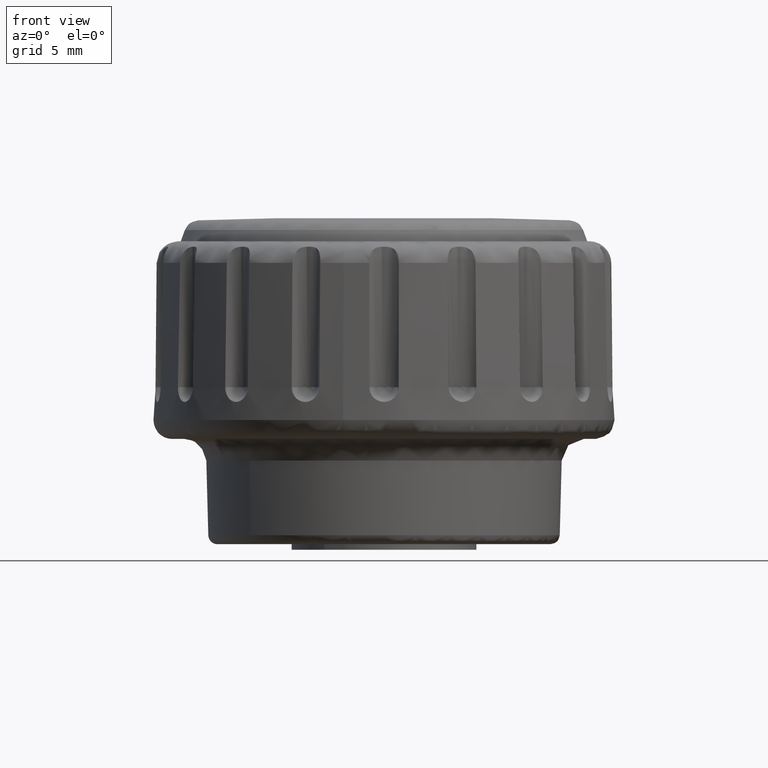
[diagram: clean part render]
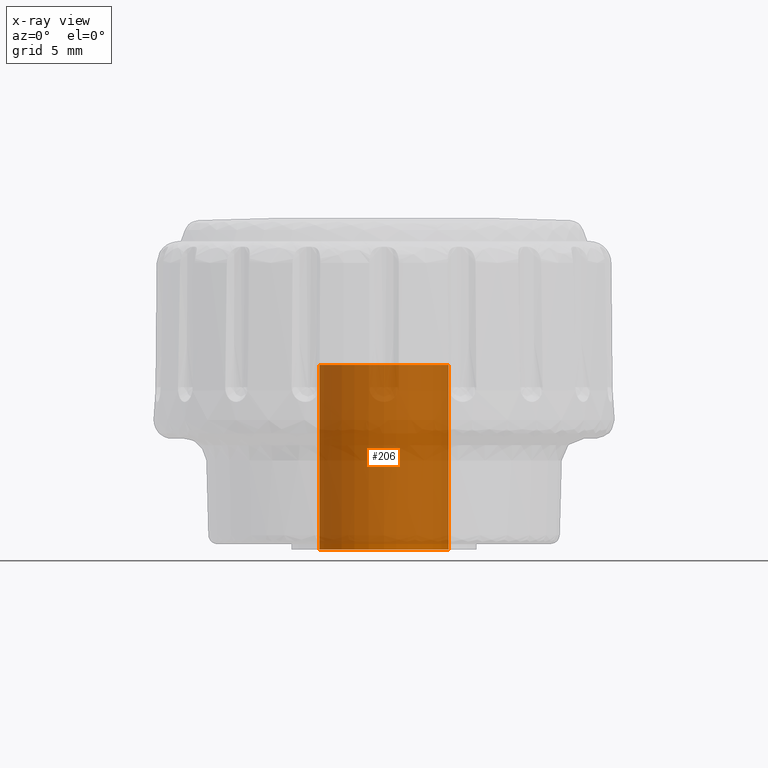
[diagram: x-ray — body ghosted, one internal face saturated and labeled with its STEP entity id]
A machine part, front view, then the same camera in x-ray: the body is ghosted and one INTERNAL B-rep face — a face not visible from any outside direction — is saturated and labeled: STEP entity #206.
In plain terms, the highlighted face is a freeform B-spline surface patch.
Its self-contained STEP definition (entity closure, byte-faithful):
#44=CARTESIAN_POINT('',(2.260097134337089,2.672444750291627,10.250000000000002));
#45=CARTESIAN_POINT('',(2.336581354930514,2.607761741310302,10.249999999999995));
#46=CARTESIAN_POINT('',(2.409241014928138,2.538810298543006,10.250000000000000));
#47=CARTESIAN_POINT('',(4.948051313471143,0.129569283614868,10.250000000000000));
#48=CARTESIAN_POINT('',(2.538810298543006,-2.409241014928138,10.250000000000000));
#49=CARTESIAN_POINT('',(0.129569283614868,-4.948051313471143,10.250000000000000));
#50=CARTESIAN_POINT('',(-2.409241014928138,-2.538810298543006,10.250000000000000));
#51=CARTESIAN_POINT('',(-4.948051313471143,-0.129569283614868,10.250000000000000));
#52=CARTESIAN_POINT('',(-2.538810298543006,2.409241014928138,10.250000000000000));
#53=CARTESIAN_POINT('',(2.260097134337089,2.672444750291627,-0.256250000000001));
#54=CARTESIAN_POINT('',(2.336581354930514,2.607761741310302,-0.256250000000001));
#55=CARTESIAN_POINT('',(2.409241014928138,2.538810298543006,-0.256250000000001));
#56=CARTESIAN_POINT('',(4.948051313471143,0.129569283614868,-0.256250000000001));
#57=CARTESIAN_POINT('',(2.538810298543006,-2.409241014928138,-0.256250000000001));
#58=CARTESIAN_POINT('',(0.129569283614868,-4.948051313471143,-0.256250000000001));
#59=CARTESIAN_POINT('',(-2.409241014928138,-2.538810298543006,-0.256250000000001));
#60=CARTESIAN_POINT('',(-4.948051313471143,-0.129569283614868,-0.256250000000001));
#61=CARTESIAN_POINT('',(-2.538810298543006,2.409241014928138,-0.256250000000001));
#69=(BOUNDED_SURFACE()B_SPLINE_SURFACE(2,1,((#44,#53),(#45,#54),(#46,#55),(#47,#56),(#48,#57),(#49,#58),(#50,#59),(#51,#60),(#52,#61)),.UNSPECIFIED.,.F.,.F.,.U.)B_SPLINE_SURFACE_WITH_KNOTS((3,2,2,2,3),(2,2),(0.0,0.231959594928934,6.030949468152262,11.829939341375590,17.628929214598919),(0.0,10.506250000000000),.UNSPECIFIED.)GEOMETRIC_REPRESENTATION_ITEM()RATIONAL_B_SPLINE_SURFACE(((0.977505800795127,0.977505800795127),(0.988284271247462,0.988284271247462),(1.0,1.0),(0.707106781186548,0.707106781186548),(1.0,1.0),(0.707106781186548,0.707106781186548),(1.0,1.0),(0.707106781186548,0.707106781186548),(1.0,1.0)))REPRESENTATION_ITEM('')SURFACE());
#70=CARTESIAN_POINT('',(2.260097181310437,2.672444829131222,-1.049595E-013));
#71=VERTEX_POINT('',#70);
#72=CARTESIAN_POINT('',(3.500000000000000,0.0,0.0));
#73=VERTEX_POINT('',#72);
#74=CARTESIAN_POINT('',(2.260097181310437,2.672444829131222,-1.049595E-013));
#75=CARTESIAN_POINT('',(2.435461646276820,2.524174303154975,-9.913618E-014));
#76=CARTESIAN_POINT('',(2.767929700249604,2.181522920079733,-8.567865E-014));
#77=CARTESIAN_POINT('',(3.118503714661130,1.630686945309838,-6.404474E-014));
#78=CARTESIAN_POINT('',(3.325199964497861,1.123243200429217,-4.411504E-014));
#79=CARTESIAN_POINT('',(3.462761197222851,0.601813183215015,-2.363603E-014));
#80=CARTESIAN_POINT('',(3.500035629256612,0.237566590132576,-9.330356E-015));
#81=CARTESIAN_POINT('',(3.500000000000000,0.0,0.0));
#82=B_SPLINE_CURVE_WITH_KNOTS('',3,(#74,#75,#76,#77,#78,#79,#80,#81),.UNSPECIFIED.,.F.,.U.,(4,1,1,1,1,4),(6.551824E-009,0.688933346026576,1.425385066113232,1.948018397683283,2.328121589525020,3.040811571146345),.UNSPECIFIED.);
#83=EDGE_CURVE('',#71,#73,#82,.T.);
#84=ORIENTED_EDGE('',*,*,#83,.F.);
#85=CARTESIAN_POINT('',(2.260097181455401,2.672444829008625,10.0));
#86=VERTEX_POINT('',#85);
#87=CARTESIAN_POINT('',(2.260097181455401,2.672444829008625,10.0));
#88=CARTESIAN_POINT('',(2.260097181310437,2.672444829131222,-1.049595E-013));
#89=QUASI_UNIFORM_CURVE('',1,(#87,#88),.UNSPECIFIED.,.F.,.U.);
#90=EDGE_CURVE('',#86,#71,#89,.T.);
#91=ORIENTED_EDGE('',*,*,#90,.F.);
#92=CARTESIAN_POINT('',(3.500000000000000,0.0,10.0));
#93=VERTEX_POINT('',#92);
#94=CARTESIAN_POINT('',(2.260097181455401,2.672444829008625,10.0));
#95=CARTESIAN_POINT('',(2.435464596163618,2.524175618246510,9.999999999999989));
#96=CARTESIAN_POINT('',(2.740209780458509,2.210070545746487,10.000000000000030));
#97=CARTESIAN_POINT('',(3.077576943263724,1.699309776542211,9.999999999999982));
#98=CARTESIAN_POINT('',(3.288417435770828,1.228179671610228,9.999999999999995));
#99=CARTESIAN_POINT('',(3.453156844249280,0.673073317960273,10.000000000000030));
#100=CARTESIAN_POINT('',(3.500060612961105,0.269244711740621,9.999999999999984));
#101=CARTESIAN_POINT('',(3.500000000000000,0.0,10.0));
#102=B_SPLINE_CURVE_WITH_KNOTS('',3,(#94,#95,#96,#97,#98,#99,#100,#101),.UNSPECIFIED.,.F.,.U.,(4,1,1,1,1,4),(6.551791E-009,0.688933345983638,1.306600283690002,1.829234546935997,2.233095770331587,3.040811570956489),.UNSPECIFIED.);
#103=EDGE_CURVE('',#86,#93,#102,.T.);
#104=ORIENTED_EDGE('',*,*,#103,.T.);
#105=CARTESIAN_POINT('',(-0.000000367221506,-3.499999999999981,10.0));
#106=VERTEX_POINT('',#105);
#107=CARTESIAN_POINT('',(3.500000000000000,0.0,10.0));
#108=CARTESIAN_POINT('',(3.500084602042959,-0.286352064712640,10.000000000000030));
#109=CARTESIAN_POINT('',(3.447857891127148,-0.708664916885998,9.999999999999945));
#110=CARTESIAN_POINT('',(3.261271205793181,-1.303969271666766,10.000000000000069));
#111=CARTESIAN_POINT('',(3.024789093007215,-1.796169622313532,10.0));
#112=CARTESIAN_POINT('',(2.668445036375147,-2.292364651954194,9.999999999999957));
#113=CARTESIAN_POINT('',(2.195341538889926,-2.754018671406120,9.999999999999959));
#114=CARTESIAN_POINT('',(1.617135478594474,-3.132738360862211,10.000000000000229));
#115=CARTESIAN_POINT('',(0.866136820572618,-3.425066875084515,9.999999999999847));
#116=CARTESIAN_POINT('',(0.314986795850150,-3.500101339709237,10.000000000000020));
#117=CARTESIAN_POINT('',(-0.000000367221506,-3.499999999999981,10.0));
#118=B_SPLINE_CURVE_WITH_KNOTS('',3,(#107,#108,#109,#110,#111,#112,#113,#114,#115,#116,#117),.UNSPECIFIED.,.F.,.U.,(4,1,1,1,1,1,1,1,4),(0.000000018149904,0.859026494235756,1.267069941351555,1.868391950878390,2.491196034947915,3.092503268743749,3.844162124232367,4.552863951940600,5.497795975187709),.UNSPECIFIED.);
#119=EDGE_CURVE('',#93,#106,#118,.T.);
#120=ORIENTED_EDGE('',*,*,#119,.T.);
#121=CARTESIAN_POINT('',(-3.500000000000000,0.0,10.0));
#122=VERTEX_POINT('',#121);
#123=CARTESIAN_POINT('',(-0.000000367221506,-3.499999999999981,10.0));
#124=CARTESIAN_POINT('',(-0.286352371549249,-3.500084663346334,10.000000000000020));
#125=CARTESIAN_POINT('',(-0.708665389706617,-3.447857883750772,9.999999999999989));
#126=CARTESIAN_POINT('',(-1.303968742882337,-3.261270976295622,10.000000000000020));
#127=CARTESIAN_POINT('',(-1.822081633765636,-3.012349799674171,9.999999999999993));
#128=CARTESIAN_POINT('',(-2.302853484141020,-2.658064959815764,10.000000000000011));
#129=CARTESIAN_POINT('',(-2.666308058883406,-2.280924910978792,9.999999999999998));
#130=CARTESIAN_POINT('',(-2.954825802691498,-1.896870277364759,9.999999999999998));
#131=CARTESIAN_POINT('',(-3.230005247582926,-1.400577129578814,10.000000000000011));
#132=CARTESIAN_POINT('',(-3.446745788000524,-0.744479705730541,9.999999999999988));
#133=CARTESIAN_POINT('',(-3.500038809509936,-0.250550763914935,9.999999999999996));
#134=CARTESIAN_POINT('',(-3.500000000000000,0.0,10.0));
#135=B_SPLINE_CURVE_WITH_KNOTS('',3,(#123,#124,#125,#126,#127,#128,#129,#130,#131,#132,#133,#134),.UNSPECIFIED.,.F.,.U.,(4,1,1,1,1,1,1,1,1,4),(0.000000018178476,0.859026429567820,1.267069845984423,1.868391810140126,2.577097643167204,3.049551724976070,3.436116366730427,4.015968170886206,4.746149421429122,5.497795561242826),.UNSPECIFIED.);
#136=EDGE_CURVE('',#106,#122,#135,.T.);
#137=ORIENTED_EDGE('',*,*,#136,.T.);
#138=CARTESIAN_POINT('',(-2.538810230027951,2.409240953941443,10.0));
#139=VERTEX_POINT('',#138);
#140=CARTESIAN_POINT('',(-3.500000000000000,0.0,10.0));
#141=CARTESIAN_POINT('',(-3.500108055516277,0.304493162033063,9.999999999999981));
#142=CARTESIAN_POINT('',(-3.441812018627965,0.747308253724959,10.000000000000030));
#143=CARTESIAN_POINT('',(-3.227936264009066,1.392125102819459,9.999999999999984));
#144=CARTESIAN_POINT('',(-2.957911586336865,1.910209000119684,9.999999999999991));
#145=CARTESIAN_POINT('',(-2.681724146890471,2.258665439833284,10.000000000000011));
#146=CARTESIAN_POINT('',(-2.538810230027951,2.409240953941443,10.0));
#147=B_SPLINE_CURVE_WITH_KNOTS('',3,(#140,#141,#142,#143,#144,#145,#146),.UNSPECIFIED.,.F.,.U.,(4,1,1,1,4),(1.238603E-009,0.913440285028325,1.328639669190657,2.034479495772728,2.657279334504463),.UNSPECIFIED.);
#148=EDGE_CURVE('',#122,#139,#147,.T.);
#149=ORIENTED_EDGE('',*,*,#148,.T.);
#150=CARTESIAN_POINT('',(-2.538810230003082,2.409240953967650,2.192829E-013));
#151=VERTEX_POINT('',#150);
#152=CARTESIAN_POINT('',(-2.538810230027951,2.409240953941443,10.0));
#153=CARTESIAN_POINT('',(-2.538810230003082,2.409240953967650,2.192829E-013));
#154=QUASI_UNIFORM_CURVE('',1,(#152,#153),.UNSPECIFIED.,.F.,.U.);
#155=EDGE_CURVE('',#139,#151,#154,.T.);
#156=ORIENTED_EDGE('',*,*,#155,.T.);
#157=CARTESIAN_POINT('',(-3.500000000000000,0.0,0.0));
#158=VERTEX_POINT('',#157);
#159=CARTESIAN_POINT('',(-3.500000000000000,0.0,0.0));
#160=CARTESIAN_POINT('',(-3.500012811730786,0.193759212478195,1.763547E-014));
#161=CARTESIAN_POINT('',(-3.467739820943881,0.581272497528687,5.290593E-014));
#162=CARTESIAN_POINT('',(-3.313690888261910,1.186938774299250,1.080321E-013));
#163=CARTESIAN_POINT('',(-3.021841743381418,1.818265164170386,1.654938E-013));
#164=CARTESIAN_POINT('',(-2.719861646378476,2.218531514801791,2.019250E-013));
#165=CARTESIAN_POINT('',(-2.538810230003082,2.409240953967650,2.192829E-013));
#166=B_SPLINE_CURVE_WITH_KNOTS('',3,(#159,#160,#161,#162,#163,#164,#165),.UNSPECIFIED.,.F.,.U.,(4,1,1,1,4),(1.238698E-009,0.581279657796836,1.162560288208717,1.868399495186621,2.657279334540593),.UNSPECIFIED.);
#167=EDGE_CURVE('',#158,#151,#166,.T.);
#168=ORIENTED_EDGE('',*,*,#167,.F.);
#169=CARTESIAN_POINT('',(-0.000000367221506,-3.499999999999981,0.0));
#170=VERTEX_POINT('',#169);
#171=CARTESIAN_POINT('',(-0.000000367221506,-3.499999999999981,0.0));
#172=CARTESIAN_POINT('',(-0.186122208267169,-3.500010509265757,0.0));
#173=CARTESIAN_POINT('',(-0.536887660421124,-3.471954156560211,0.0));
#174=CARTESIAN_POINT('',(-1.074913435692248,-3.345936039178431,0.0));
#175=CARTESIAN_POINT('',(-1.540752787791537,-3.156315989282605,0.0));
#176=CARTESIAN_POINT('',(-2.004574629105046,-2.884081166592660,0.0));
#177=CARTESIAN_POINT('',(-2.380413805105090,-2.583280557133266,0.0));
#178=CARTESIAN_POINT('',(-2.736745540486510,-2.199686156471208,0.0));
#179=CARTESIAN_POINT('',(-2.996059271183717,-1.829084543933437,0.0));
#180=CARTESIAN_POINT('',(-3.207373101229871,-1.421785766218388,0.0));
#181=CARTESIAN_POINT('',(-3.348491434510066,-1.045673868257278,0.0));
#182=CARTESIAN_POINT('',(-3.467203587510897,-0.565515849806313,0.0));
#183=CARTESIAN_POINT('',(-3.500028147304105,-0.221916505473197,0.0));
#184=CARTESIAN_POINT('',(-3.500000000000000,0.0,0.0));
#185=B_SPLINE_CURVE_WITH_KNOTS('',3,(#171,#172,#173,#174,#175,#176,#177,#178,#179,#180,#181,#182,#183,#184),.UNSPECIFIED.,.F.,.U.,(4,1,1,1,1,1,1,1,1,1,1,4),(0.000000018178476,0.558364614554282,1.052311190663272,1.653634485813578,2.061679854743901,2.662998485120174,3.092503035694161,3.629403499127528,4.015968170886206,4.466960878992746,4.832052742229074,5.497795561242826),.UNSPECIFIED.);
#186=EDGE_CURVE('',#170,#158,#185,.T.);
#187=ORIENTED_EDGE('',*,*,#186,.F.);
#188=CARTESIAN_POINT('',(3.500000000000000,0.0,0.0));
#189=CARTESIAN_POINT('',(3.500010473999348,-0.186121852786066,0.0));
#190=CARTESIAN_POINT('',(3.471951629829984,-0.536886143913131,0.0));
#191=CARTESIAN_POINT('',(3.339402751065800,-1.102868942685704,0.0));
#192=CARTESIAN_POINT('',(3.127092967158614,-1.606633275207059,0.0));
#193=CARTESIAN_POINT('',(2.810098520550904,-2.110637291557718,0.0));
#194=CARTESIAN_POINT('',(2.474346567736520,-2.495067402719003,0.0));
#195=CARTESIAN_POINT('',(2.051777979375871,-2.850617698791415,0.0));
#196=CARTESIAN_POINT('',(1.612306829266703,-3.123290345167619,0.0));
#197=CARTESIAN_POINT('',(1.155194225386817,-3.314261169036779,0.0));
#198=CARTESIAN_POINT('',(0.622776348252157,-3.459845130404184,0.0));
#199=CARTESIAN_POINT('',(0.250553102205533,-3.500048143410524,0.0));
#200=CARTESIAN_POINT('',(-0.000000367221506,-3.499999999999981,0.0));
#201=B_SPLINE_CURVE_WITH_KNOTS('',3,(#188,#189,#190,#191,#192,#193,#194,#195,#196,#197,#198,#199,#200),.UNSPECIFIED.,.F.,.U.,(4,1,1,1,1,1,1,1,1,1,4),(0.000000018149904,0.558364656596365,1.052311269848079,1.739537651532037,2.190535492802988,2.834797983259920,3.264309495036295,3.844162124232367,4.381058087523416,4.746149778827006,5.497795975187709),.UNSPECIFIED.);
#202=EDGE_CURVE('',#73,#170,#201,.T.);
#203=ORIENTED_EDGE('',*,*,#202,.F.);
#204=EDGE_LOOP('',(#84,#91,#104,#120,#137,#149,#156,#168,#187,#203));
#205=FACE_OUTER_BOUND('',#204,.T.);
#206=ADVANCED_FACE('',(#205),#69,.T.);